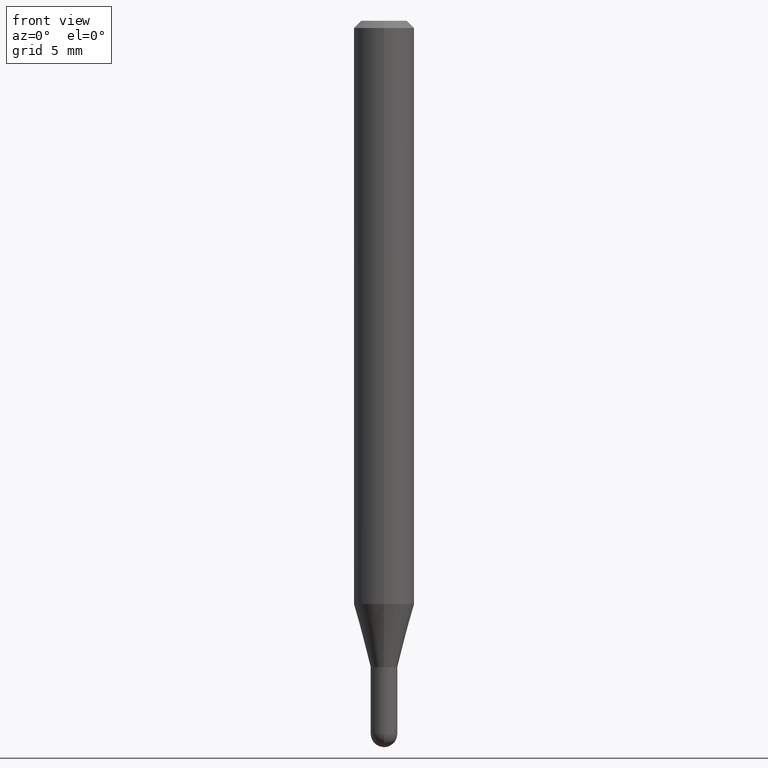
[diagram: clean part render]
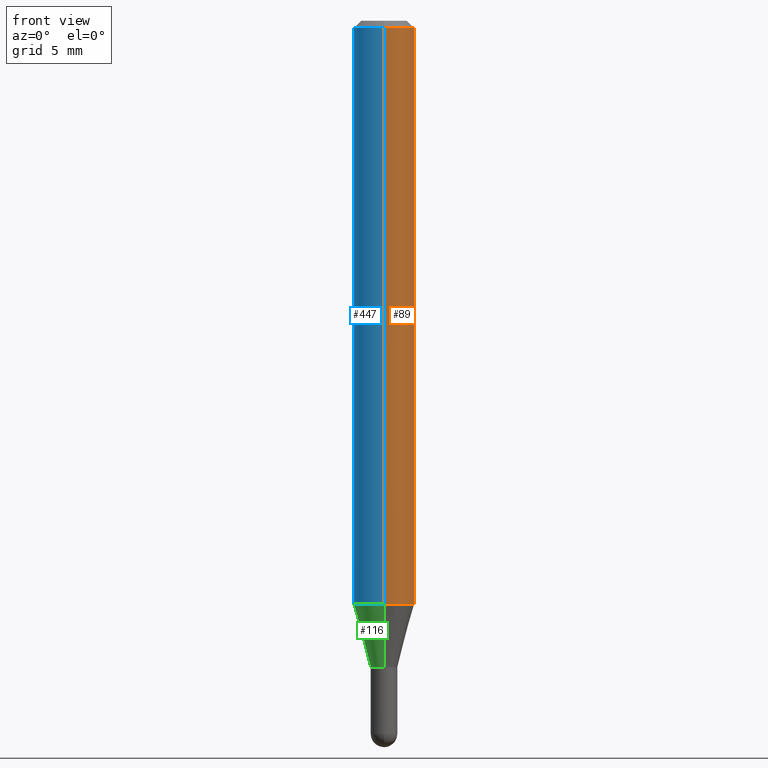
[diagram: same view with three faces highlighted in distinct colors, each labeled with its STEP entity id]
A machine part, front view with three faces highlighted in distinct colors.
Their STEP definitions:

[orange] entity #89 — the highlighted cylindrical surface (edge-blend (fillet) strip) has radius 1.5875 mm, axis along (-0, 0, 1).
#8 = DIRECTION ( 'NONE',  ( -2.445461311357550980E-29, 3.491492071862827071E-15, 1.000000000000000000 ) ) ;
#34 = CARTESIAN_POINT ( 'NONE',  ( 2.945260345494779582E-29, -4.205077012712332397E-15, -1.204378221735094456 ) ) ;
#41 = VECTOR ( 'NONE', #285, 39.37007874015748143 ) ;
#55 = DIRECTION ( 'NONE',  ( -6.982962677686265922E-15, -1.000000000000000000, 3.491492071862827071E-15 ) ) ;
#75 = LINE ( 'NONE', #317, #41 ) ;
#89 = ADVANCED_FACE ( 'NONE', ( #302 ), #508, .T. ) ;
#94 = CARTESIAN_POINT ( 'NONE',  ( 0.000000000000000000, 0.000000000000000000, 0.000000000000000000 ) ) ;
#103 = DIRECTION ( 'NONE',  ( -6.982962677686265922E-15, -1.000000000000000000, 4.370956789862821150E-15 ) ) ;
#149 = ORIENTED_EDGE ( 'NONE', *, *, #411, .T. ) ;
#161 = ORIENTED_EDGE ( 'NONE', *, *, #227, .F. ) ;
#176 = CARTESIAN_POINT ( 'NONE',  ( 4.440892098500625669E-16, 0.06250000000000000000, -2.182182544914266919E-16 ) ) ;
#212 = VERTEX_POINT ( 'NONE', #280 ) ;
#221 = EDGE_CURVE ( 'NONE', #492, #483, #75, .T. ) ;
#225 = AXIS2_PLACEMENT_3D ( 'NONE', #94, #415, #55 ) ;
#227 = EDGE_CURVE ( 'NONE', #483, #212, #435, .T. ) ;
#233 = EDGE_LOOP ( 'NONE', ( #389, #149, #161, #308 ) ) ;
#238 = DIRECTION ( 'NONE',  ( -6.982962677686265922E-15, -1.000000000000000000, 3.483106191921935554E-15 ) ) ;
#252 = LINE ( 'NONE', #176, #407 ) ;
#259 = AXIS2_PLACEMENT_3D ( 'NONE', #34, #304, #103 ) ;
#273 = VERTEX_POINT ( 'NONE', #325 ) ;
#280 = CARTESIAN_POINT ( 'NONE',  ( 4.440892098500922971E-16, 0.06249999999999995143, -0.01500000000000028394 ) ) ;
#285 = DIRECTION ( 'NONE',  ( -2.445461311357550980E-29, 3.491492071862827071E-15, 1.000000000000000000 ) ) ;
#302 = FACE_OUTER_BOUND ( 'NONE', #233, .T. ) ;
#304 = DIRECTION ( 'NONE',  ( -2.445461311357550980E-29, 3.491492071862827071E-15, 1.000000000000000000 ) ) ;
#308 = ORIENTED_EDGE ( 'NONE', *, *, #221, .F. ) ;
#317 = CARTESIAN_POINT ( 'NONE',  ( -4.364351673553916201E-16, -0.06250000000000000000, 2.182182544914266919E-16 ) ) ;
#325 = CARTESIAN_POINT ( 'NONE',  ( 4.440892098500917054E-16, 0.06249999999999575340, -1.204378221735094678 ) ) ;
#381 = CARTESIAN_POINT ( 'NONE',  ( -4.364351673553623336E-16, -0.06250000000000423273, -1.204378221735094234 ) ) ;
#389 = ORIENTED_EDGE ( 'NONE', *, *, #482, .T. ) ;
#407 = VECTOR ( 'NONE', #8, 39.37007874015748143 ) ;
#411 = EDGE_CURVE ( 'NONE', #273, #212, #252, .T. ) ;
#415 = DIRECTION ( 'NONE',  ( -2.445461311357550980E-29, 3.491492071862827071E-15, 1.000000000000000000 ) ) ;
#417 = CARTESIAN_POINT ( 'NONE',  ( -4.364351673553912750E-16, -0.06250000000000005551, -0.01499999999999984852 ) ) ;
#435 = CIRCLE ( 'NONE', #459, 0.06250000000000000000 ) ;
#438 = CARTESIAN_POINT ( 'NONE',  ( 3.668191967036342918E-31, -5.237238107794263631E-17, -0.01500000000000006710 ) ) ;
#459 = AXIS2_PLACEMENT_3D ( 'NONE', #438, #479, #238 ) ;
#474 = CIRCLE ( 'NONE', #259, 0.06250000000000000000 ) ;
#479 = DIRECTION ( 'NONE',  ( -2.445461311357550980E-29, 3.491492071862827071E-15, 1.000000000000000000 ) ) ;
#482 = EDGE_CURVE ( 'NONE', #492, #273, #474, .T. ) ;
#483 = VERTEX_POINT ( 'NONE', #417 ) ;
#492 = VERTEX_POINT ( 'NONE', #381 ) ;
#508 = CYLINDRICAL_SURFACE ( 'NONE', #225, 0.06250000000000000000 ) ;

[blue] entity #447 — the highlighted cylindrical surface (edge-blend (fillet) strip) has radius 1.5875 mm, axis along (-0, 0, 1).
#8 = DIRECTION ( 'NONE',  ( -2.445461311357550980E-29, 3.491492071862827071E-15, 1.000000000000000000 ) ) ;
#20 = ORIENTED_EDGE ( 'NONE', *, *, #321, .F. ) ;
#31 = CYLINDRICAL_SURFACE ( 'NONE', #382, 0.06250000000000000000 ) ;
#41 = VECTOR ( 'NONE', #285, 39.37007874015748143 ) ;
#50 = CARTESIAN_POINT ( 'NONE',  ( 2.945260345494779582E-29, -4.205077012712332397E-15, -1.204378221735094456 ) ) ;
#59 = ORIENTED_EDGE ( 'NONE', *, *, #392, .T. ) ;
#75 = LINE ( 'NONE', #317, #41 ) ;
#78 = AXIS2_PLACEMENT_3D ( 'NONE', #472, #122, #148 ) ;
#122 = DIRECTION ( 'NONE',  ( -2.445461311357550980E-29, 3.491492071862827071E-15, 1.000000000000000000 ) ) ;
#126 = CIRCLE ( 'NONE', #78, 0.06250000000000000000 ) ;
#140 = DIRECTION ( 'NONE',  ( -6.982962677686265922E-15, -1.000000000000000000, 4.370956789862821150E-15 ) ) ;
#148 = DIRECTION ( 'NONE',  ( -6.982962677686265922E-15, -1.000000000000000000, 3.483106191921935554E-15 ) ) ;
#176 = CARTESIAN_POINT ( 'NONE',  ( 4.440892098500625669E-16, 0.06250000000000000000, -2.182182544914266919E-16 ) ) ;
#187 = FACE_OUTER_BOUND ( 'NONE', #408, .T. ) ;
#191 = DIRECTION ( 'NONE',  ( -2.445461311357550980E-29, 3.491492071862827071E-15, 1.000000000000000000 ) ) ;
#212 = VERTEX_POINT ( 'NONE', #280 ) ;
#221 = EDGE_CURVE ( 'NONE', #492, #483, #75, .T. ) ;
#252 = LINE ( 'NONE', #176, #407 ) ;
#273 = VERTEX_POINT ( 'NONE', #325 ) ;
#280 = CARTESIAN_POINT ( 'NONE',  ( 4.440892098500922971E-16, 0.06249999999999995143, -0.01500000000000028394 ) ) ;
#285 = DIRECTION ( 'NONE',  ( -2.445461311357550980E-29, 3.491492071862827071E-15, 1.000000000000000000 ) ) ;
#307 = CARTESIAN_POINT ( 'NONE',  ( 0.000000000000000000, 0.000000000000000000, 0.000000000000000000 ) ) ;
#317 = CARTESIAN_POINT ( 'NONE',  ( -4.364351673553916201E-16, -0.06250000000000000000, 2.182182544914266919E-16 ) ) ;
#321 = EDGE_CURVE ( 'NONE', #212, #483, #126, .T. ) ;
#325 = CARTESIAN_POINT ( 'NONE',  ( 4.440892098500917054E-16, 0.06249999999999575340, -1.204378221735094678 ) ) ;
#327 = AXIS2_PLACEMENT_3D ( 'NONE', #50, #487, #140 ) ;
#339 = DIRECTION ( 'NONE',  ( -6.982962677686265922E-15, -1.000000000000000000, 3.491492071862827071E-15 ) ) ;
#370 = ORIENTED_EDGE ( 'NONE', *, *, #221, .T. ) ;
#381 = CARTESIAN_POINT ( 'NONE',  ( -4.364351673553623336E-16, -0.06250000000000423273, -1.204378221735094234 ) ) ;
#382 = AXIS2_PLACEMENT_3D ( 'NONE', #307, #191, #339 ) ;
#392 = EDGE_CURVE ( 'NONE', #273, #492, #495, .T. ) ;
#404 = ORIENTED_EDGE ( 'NONE', *, *, #411, .F. ) ;
#407 = VECTOR ( 'NONE', #8, 39.37007874015748143 ) ;
#408 = EDGE_LOOP ( 'NONE', ( #404, #59, #370, #20 ) ) ;
#411 = EDGE_CURVE ( 'NONE', #273, #212, #252, .T. ) ;
#417 = CARTESIAN_POINT ( 'NONE',  ( -4.364351673553912750E-16, -0.06250000000000005551, -0.01499999999999984852 ) ) ;
#447 = ADVANCED_FACE ( 'NONE', ( #187 ), #31, .T. ) ;
#472 = CARTESIAN_POINT ( 'NONE',  ( 3.668191967036342918E-31, -5.237238107794263631E-17, -0.01500000000000006710 ) ) ;
#483 = VERTEX_POINT ( 'NONE', #417 ) ;
#487 = DIRECTION ( 'NONE',  ( -2.445461311357550980E-29, 3.491492071862827071E-15, 1.000000000000000000 ) ) ;
#492 = VERTEX_POINT ( 'NONE', #381 ) ;
#495 = CIRCLE ( 'NONE', #327, 0.06250000000000000000 ) ;

[green] entity #116 — the highlighted conical surface has half-angle 15 deg.
#9 = DIRECTION ( 'NONE',  ( -2.445461311357550980E-29, 3.491492071862827071E-15, 1.000000000000000000 ) ) ;
#11 = DIRECTION ( 'NONE',  ( -2.445461311357550980E-29, 3.491492071862827071E-15, 1.000000000000000000 ) ) ;
#13 = VECTOR ( 'NONE', #57, 39.37007874015748854 ) ;
#21 = DIRECTION ( 'NONE',  ( -6.982962677686265922E-15, -1.000000000000000000, 0.000000000000000000 ) ) ;
#44 = FACE_OUTER_BOUND ( 'NONE', #293, .T. ) ;
#48 = CIRCLE ( 'NONE', #85, 0.02750000000000019443 ) ;
#50 = CARTESIAN_POINT ( 'NONE',  ( 2.945260345494779582E-29, -4.205077012712332397E-15, -1.204378221735094456 ) ) ;
#57 = DIRECTION ( 'NONE',  ( 1.839019923739650408E-15, 0.2588190451025320082, 0.9659258262890650926 ) ) ;
#82 = ORIENTED_EDGE ( 'NONE', *, *, #392, .F. ) ;
#85 = AXIS2_PLACEMENT_3D ( 'NONE', #450, #11, #21 ) ;
#92 = EDGE_CURVE ( 'NONE', #320, #273, #377, .T. ) ;
#96 = CARTESIAN_POINT ( 'NONE',  ( 1.953992523340615224E-16, 0.02749999999999553149, -1.335000000000000187 ) ) ;
#98 = CARTESIAN_POINT ( 'NONE',  ( -1.920314736363410365E-16, -0.02750000000000485390, -1.335000000000000187 ) ) ;
#107 = CARTESIAN_POINT ( 'NONE',  ( 3.197442310920768728E-16, 0.02749999999999553149, -1.335000000000000187 ) ) ;
#116 = ADVANCED_FACE ( 'NONE', ( #44 ), #406, .T. ) ;
#127 = CARTESIAN_POINT ( 'NONE',  ( 3.264690850662330611E-29, -4.661141915936874380E-15, -1.335000000000000187 ) ) ;
#135 = DIRECTION ( 'NONE',  ( -1.807323732225379838E-15, -0.2588190451025252914, 0.9659258262890670910 ) ) ;
#140 = DIRECTION ( 'NONE',  ( -6.982962677686265922E-15, -1.000000000000000000, 4.370956789862821150E-15 ) ) ;
#208 = DIRECTION ( 'NONE',  ( -6.982962677686265922E-15, -1.000000000000000000, 0.000000000000000000 ) ) ;
#273 = VERTEX_POINT ( 'NONE', #325 ) ;
#291 = EDGE_CURVE ( 'NONE', #497, #492, #481, .T. ) ;
#293 = EDGE_LOOP ( 'NONE', ( #366, #298, #489, #82 ) ) ;
#298 = ORIENTED_EDGE ( 'NONE', *, *, #373, .T. ) ;
#305 = AXIS2_PLACEMENT_3D ( 'NONE', #127, #9, #208 ) ;
#320 = VERTEX_POINT ( 'NONE', #107 ) ;
#325 = CARTESIAN_POINT ( 'NONE',  ( 4.440892098500917054E-16, 0.06249999999999575340, -1.204378221735094678 ) ) ;
#327 = AXIS2_PLACEMENT_3D ( 'NONE', #50, #487, #140 ) ;
#341 = VECTOR ( 'NONE', #135, 39.37007874015748143 ) ;
#366 = ORIENTED_EDGE ( 'NONE', *, *, #92, .F. ) ;
#373 = EDGE_CURVE ( 'NONE', #320, #497, #48, .T. ) ;
#377 = LINE ( 'NONE', #96, #13 ) ;
#381 = CARTESIAN_POINT ( 'NONE',  ( -4.364351673553623336E-16, -0.06250000000000423273, -1.204378221735094234 ) ) ;
#385 = CARTESIAN_POINT ( 'NONE',  ( -1.920314736363410365E-16, -0.02750000000000485390, -1.335000000000000187 ) ) ;
#392 = EDGE_CURVE ( 'NONE', #273, #492, #495, .T. ) ;
#406 = CONICAL_SURFACE ( 'NONE', #305, 0.02750000000000019443, 0.2617993877991576235 ) ;
#450 = CARTESIAN_POINT ( 'NONE',  ( 3.264690850662330611E-29, -4.661141915936874380E-15, -1.335000000000000187 ) ) ;
#481 = LINE ( 'NONE', #98, #341 ) ;
#487 = DIRECTION ( 'NONE',  ( -2.445461311357550980E-29, 3.491492071862827071E-15, 1.000000000000000000 ) ) ;
#489 = ORIENTED_EDGE ( 'NONE', *, *, #291, .T. ) ;
#492 = VERTEX_POINT ( 'NONE', #381 ) ;
#495 = CIRCLE ( 'NONE', #327, 0.06250000000000000000 ) ;
#497 = VERTEX_POINT ( 'NONE', #385 ) ;